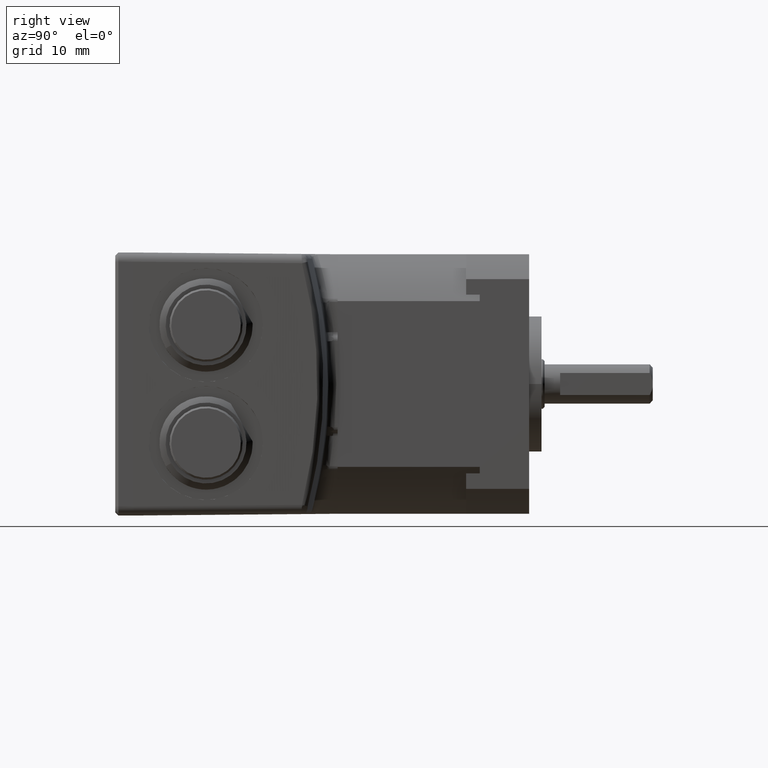
[diagram: clean part render]
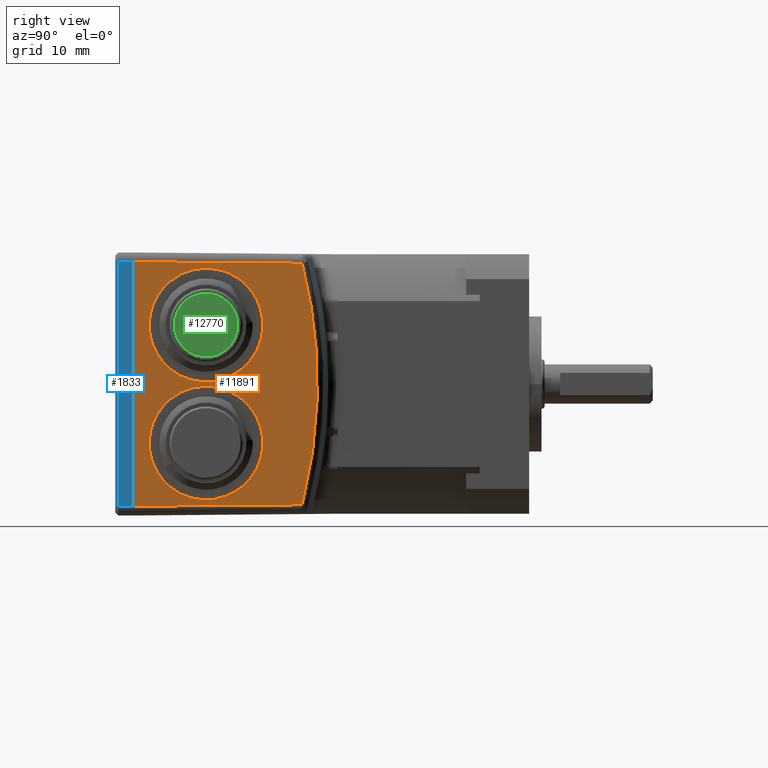
[diagram: same view with three faces highlighted in distinct colors, each labeled with its STEP entity id]
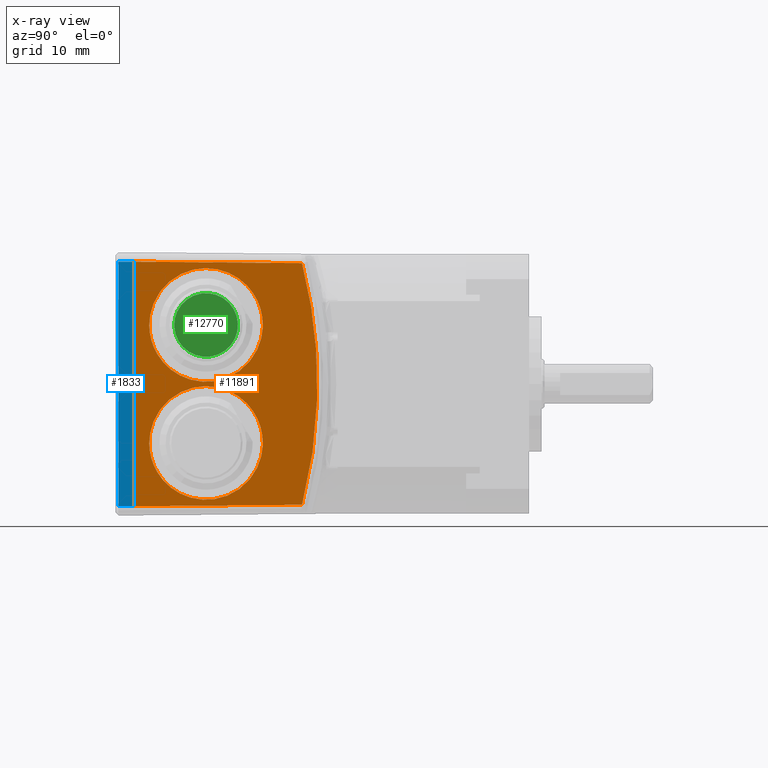
[diagram: x-ray of the same camera — body ghosted, the three highlighted faces saturated]
A machine part, right view with three faces highlighted in distinct colors.
The next image is the same camera in x-ray (body ghosted, the three faces saturated) — at least one of them is partly hidden behind the body in this view.
Their STEP definitions:

[orange] entity #11891 — the highlighted planar face has unit normal (1, 0.0087, -0).
#5 = CARTESIAN_POINT ( 'NONE',  ( 36.26616946761814830, -30.50000000000000711, 9.549999999999997158 ) ) ;
#164 = EDGE_LOOP ( 'NONE', ( #6401 ) ) ;
#346 = VERTEX_POINT ( 'NONE', #14197 ) ;
#418 = CARTESIAN_POINT ( 'NONE',  ( 36.28798663709504524, -33.00000000000000000, 20.99999999999999645 ) ) ;
#430 = CARTESIAN_POINT ( 'NONE',  ( 36.10559510026818231, -12.10000000000000142, 8.849999999999992539 ) ) ;
#555 = VECTOR ( 'NONE', #9724, 1000.000000000000000 ) ;
#560 = EDGE_CURVE ( 'NONE', #11190, #15937, #12379, .T. ) ;
#1679 = DIRECTION ( 'NONE',  ( 0.008726535498373953759, -0.9999619230641713097, -9.688400635503528767E-19 ) ) ;
#1766 = CARTESIAN_POINT ( 'NONE',  ( 36.26616946761814830, -30.50000000000000711, 8.849999999999988987 ) ) ;
#2437 = CARTESIAN_POINT ( 'NONE',  ( 36.26616946761814830, -30.50000000000000711, 9.549999999999997158 ) ) ;
#2866 = CARTESIAN_POINT ( 'NONE',  ( 36.10559510026818231, -12.09999999999999787, -27.95000000000000284 ) ) ;
#3868 = LINE ( 'NONE', #17142, #13364 ) ;
#4096 = AXIS2_PLACEMENT_3D ( 'NONE', #16085, #15032, #1679 ) ;
#4292 = EDGE_CURVE ( 'NONE', #11190, #5449, #3868, .T. ) ;
#4462 = FACE_BOUND ( 'NONE', #16611, .T. ) ;
#4592 = CARTESIAN_POINT ( 'NONE',  ( 36.26616946761814830, -30.50000000000000711, 9.549999999999997158 ) ) ;
#4711 = CARTESIAN_POINT ( 'NONE',  ( 36.03317836048226752, -3.801863541166340621, 8.989202323182405863 ) ) ;
#4870 = CARTESIAN_POINT ( 'NONE',  ( 36.03053752162614387, -3.499253381435361021, -6.615894705510670271 ) ) ;
#4985 = CARTESIAN_POINT ( 'NONE',  ( 36.26616946761814830, -30.50000000000000711, 27.94999999999999574 ) ) ;
#5449 = VERTEX_POINT ( 'NONE', #16677 ) ;
#5496 = B_SPLINE_CURVE_WITH_KNOTS ( 'NONE', 3,
 ( #16844, #15456, #8731, #4870, #8807, #10172, #10022, #12888, #11259, #14137, #4711, #16684, #7421, #6183 ),
 .UNSPECIFIED., .F., .F.,
 ( 4, 2, 2, 2, 2, 2, 4 ),
 ( 0.000000000000000000, 0.009810018899477650559, 0.01962003779895530112, 0.02452504724869412553, 0.02697755197356353773, 0.02943005669843294647, 0.03924007559791060917 ),
 .UNSPECIFIED. ) ;
#5893 = LINE ( 'NONE', #11223, #555 ) ;
#6183 = CARTESIAN_POINT ( 'NONE',  ( 36.05038119505783101, -5.773113133577770562, 19.55043831046156555 ) ) ;
#6401 = ORIENTED_EDGE ( 'NONE', *, *, #16016, .T. ) ;
#6902 = CARTESIAN_POINT ( 'NONE',  ( 36.26616946761814830, -30.50000000000000711, -27.95000000000000639 ) ) ;
#7094 = FACE_BOUND ( 'NONE', #164, .T. ) ;
#7421 = CARTESIAN_POINT ( 'NONE',  ( 36.04313725348462327, -4.943039647089695343, 16.33889738293623850 ) ) ;
#7542 = CARTESIAN_POINT ( 'NONE',  ( 36.28798663709504524, -33.00000000000000000, 19.78804375249877978 ) ) ;
#7597 = EDGE_CURVE ( 'NONE', #346, #15937, #5893, .T. ) ;
#7712 = VERTEX_POINT ( 'NONE', #15752 ) ;
#8164 =( BOUNDED_CURVE ( )  B_SPLINE_CURVE ( 3, ( #5, #4985, #10277, #14520, #15651, #17125, #2437 ),
 .UNSPECIFIED., .T., .T. ) 
 B_SPLINE_CURVE_WITH_KNOTS ( ( 4, 3, 4 ),
 ( 9.688769554160371613E-19, 3.141592653589793116, 6.283185307179586232 ),
 .UNSPECIFIED. ) 
 CURVE ( )  GEOMETRIC_REPRESENTATION_ITEM ( )  RATIONAL_B_SPLINE_CURVE ( ( 1.000000000000000000, 0.3333333333333333703, 0.3333333333333333703, 1.000000000000000000, 0.3333333333333333703, 0.3333333333333333703, 1.000000000000000000 ) ) 
 REPRESENTATION_ITEM ( '' )  );
#8287 = CARTESIAN_POINT ( 'NONE',  ( 36.26616946761814830, -30.50000000000000711, -9.550000000000004263 ) ) ;
#8480 = FACE_OUTER_BOUND ( 'NONE', #9794, .T. ) ;
#8602 = VERTEX_POINT ( 'NONE', #4592 ) ;
#8731 = CARTESIAN_POINT ( 'NONE',  ( 36.03774897812961342, -4.325604447630988503, -13.10939748596302046 ) ) ;
#8807 = CARTESIAN_POINT ( 'NONE',  ( 36.02871480626861000, -3.290390889043373068, -3.351887370253044285 ) ) ;
#9113 = ORIENTED_EDGE ( 'NONE', *, *, #10330, .T. ) ;
#9724 = DIRECTION ( 'NONE',  ( 0.008726203243944238158, -0.9999238504775704861, 0.008726203243944232954 ) ) ;
#9794 = EDGE_LOOP ( 'NONE', ( #10826, #13709, #10334, #12535 ) ) ;
#10022 = CARTESIAN_POINT ( 'NONE',  ( 36.02911365280559863, -3.336094175326125288, 3.215267693572015251 ) ) ;
#10172 = CARTESIAN_POINT ( 'NONE',  ( 36.02867605025628706, -3.285949889907775479, 1.570208829527302674 ) ) ;
#10277 = CARTESIAN_POINT ( 'NONE',  ( 36.10559510026818231, -12.10000000000000142, 27.95000000000000284 ) ) ;
#10330 = EDGE_CURVE ( 'NONE', #8602, #8602, #8164, .T. ) ;
#10334 = ORIENTED_EDGE ( 'NONE', *, *, #7597, .T. ) ;
#10826 = ORIENTED_EDGE ( 'NONE', *, *, #4292, .T. ) ;
#10833 = PLANE ( 'NONE',  #4096 ) ;
#11161 = VECTOR ( 'NONE', #17133, 1000.000000000000000 ) ;
#11190 = VERTEX_POINT ( 'NONE', #11241 ) ;
#11223 = CARTESIAN_POINT ( 'NONE',  ( 36.00011421558544100, -0.01308780975893343405, 19.50017133098917554 ) ) ;
#11241 = CARTESIAN_POINT ( 'NONE',  ( 36.28798663709504524, -33.00000000000000000, -19.78804375249876912 ) ) ;
#11259 = CARTESIAN_POINT ( 'NONE',  ( 36.03102607064481333, -3.555235554005237386, 6.516522690274697993 ) ) ;
#11891 = ADVANCED_FACE ( 'NONE', ( #7094, #4462, #8480 ), #10833, .T. ) ;
#12215 = CARTESIAN_POINT ( 'NONE',  ( 36.26616946761814830, -30.50000000000000711, -9.550000000000004263 ) ) ;
#12379 = LINE ( 'NONE', #418, #11161 ) ;
#12535 = ORIENTED_EDGE ( 'NONE', *, *, #560, .F. ) ;
#12888 = CARTESIAN_POINT ( 'NONE',  ( 36.03046080510046778, -3.490462538313461760, 5.689541032514252805 ) ) ;
#13364 = VECTOR ( 'NONE', #17230, 1000.000000000000000 ) ;
#13709 = ORIENTED_EDGE ( 'NONE', *, *, #16160, .T. ) ;
#13813 = CARTESIAN_POINT ( 'NONE',  ( 36.10559510026818231, -12.09999999999999964, -9.550000000000002487 ) ) ;
#14137 = CARTESIAN_POINT ( 'NONE',  ( 36.03238512951543981, -3.710968275438108144, 8.166455075859868629 ) ) ;
#14197 = CARTESIAN_POINT ( 'NONE',  ( 36.05038119505783101, -5.773113133577770562, 19.55043831046156555 ) ) ;
#14286 =( BOUNDED_CURVE ( )  B_SPLINE_CURVE ( 3, ( #12215, #1766, #430, #13813, #2866, #6902, #8287 ),
 .UNSPECIFIED., .T., .T. ) 
 B_SPLINE_CURVE_WITH_KNOTS ( ( 4, 3, 4 ),
 ( 9.688769554160371613E-19, 3.141592653589793116, 6.283185307179586232 ),
 .UNSPECIFIED. ) 
 CURVE ( )  GEOMETRIC_REPRESENTATION_ITEM ( )  RATIONAL_B_SPLINE_CURVE ( ( 1.000000000000000000, 0.3333333333333333703, 0.3333333333333333703, 1.000000000000000000, 0.3333333333333333703, 0.3333333333333333703, 1.000000000000000000 ) ) 
 REPRESENTATION_ITEM ( '' )  );
#14520 = CARTESIAN_POINT ( 'NONE',  ( 36.10559510026818231, -12.09999999999999787, 9.549999999999998934 ) ) ;
#15032 = DIRECTION ( 'NONE',  ( 0.9999619230641713097, 0.008726535498373953759, -1.110180750734292354E-16 ) ) ;
#15456 = CARTESIAN_POINT ( 'NONE',  ( 36.04313725360854903, -4.943039661287755848, -16.33889743786841819 ) ) ;
#15651 = CARTESIAN_POINT ( 'NONE',  ( 36.10559510026818231, -12.09999999999999609, -8.849999999999999645 ) ) ;
#15752 = CARTESIAN_POINT ( 'NONE',  ( 36.26616946761814830, -30.50000000000000711, -9.550000000000004263 ) ) ;
#15937 = VERTEX_POINT ( 'NONE', #7542 ) ;
#16016 = EDGE_CURVE ( 'NONE', #7712, #7712, #14286, .T. ) ;
#16085 = CARTESIAN_POINT ( 'NONE',  ( 36.00000000000000711, 0.000000000000000000, 20.99999999999999645 ) ) ;
#16160 = EDGE_CURVE ( 'NONE', #5449, #346, #5496, .T. ) ;
#16611 = EDGE_LOOP ( 'NONE', ( #9113 ) ) ;
#16677 = CARTESIAN_POINT ( 'NONE',  ( 36.05038119505783101, -5.773113133577774114, -19.55043831046157976 ) ) ;
#16684 = CARTESIAN_POINT ( 'NONE',  ( 36.03770984652869203, -4.321120410306097170, 13.09190582245018497 ) ) ;
#16844 = CARTESIAN_POINT ( 'NONE',  ( 36.05038119505783101, -5.773113133577774114, -19.55043831046157976 ) ) ;
#17125 = CARTESIAN_POINT ( 'NONE',  ( 36.26616946761814830, -30.50000000000000711, -8.849999999999999645 ) ) ;
#17133 = DIRECTION ( 'NONE',  ( 1.110223024625156540E-16, -0.000000000000000000, 1.000000000000000000 ) ) ;
#17142 = CARTESIAN_POINT ( 'NONE',  ( 35.99691605741714540, 0.3533848176459192802, -19.49697317282089770 ) ) ;
#17230 = DIRECTION ( 'NONE',  ( -0.008726203243944234689, 0.9999238504775704861, 0.008726203243944236423 ) ) ;

[blue] entity #1833 — the highlighted planar face has unit normal (-1, 0, 0).
#26 = CARTESIAN_POINT ( 'NONE',  ( 36.28798663709504524, -35.49999999999993605, -19.78804375249876202 ) ) ;
#418 = CARTESIAN_POINT ( 'NONE',  ( 36.28798663709504524, -33.00000000000000000, 20.99999999999999645 ) ) ;
#560 = EDGE_CURVE ( 'NONE', #11190, #15937, #12379, .T. ) ;
#1429 = DIRECTION ( 'NONE',  ( 0.000000000000000000, 1.000000000000000000, -2.442490654175344783E-15 ) ) ;
#1833 = ADVANCED_FACE ( 'NONE', ( #7960 ), #2360, .F. ) ;
#2360 = PLANE ( 'NONE',  #13289 ) ;
#3525 = CARTESIAN_POINT ( 'NONE',  ( 36.28798663709504524, -36.00000000000007105, 19.78804375249878689 ) ) ;
#4229 = EDGE_CURVE ( 'NONE', #8957, #4274, #7964, .T. ) ;
#4274 = VERTEX_POINT ( 'NONE', #6826 ) ;
#4919 = ORIENTED_EDGE ( 'NONE', *, *, #560, .T. ) ;
#5163 = DIRECTION ( 'NONE',  ( -1.000000000000000000, 0.000000000000000000, 0.000000000000000000 ) ) ;
#5244 = CARTESIAN_POINT ( 'NONE',  ( 36.28798663709504524, -35.99999999999993605, -19.78804375249876202 ) ) ;
#6826 = CARTESIAN_POINT ( 'NONE',  ( 36.28798663709504524, -35.49999999999993605, -19.78804375249876202 ) ) ;
#7542 = CARTESIAN_POINT ( 'NONE',  ( 36.28798663709504524, -33.00000000000000000, 19.78804375249877978 ) ) ;
#7960 = FACE_OUTER_BOUND ( 'NONE', #12509, .T. ) ;
#7964 = LINE ( 'NONE', #26, #9744 ) ;
#8501 = ORIENTED_EDGE ( 'NONE', *, *, #8857, .F. ) ;
#8857 = EDGE_CURVE ( 'NONE', #8957, #15937, #12854, .T. ) ;
#8957 = VERTEX_POINT ( 'NONE', #10687 ) ;
#9744 = VECTOR ( 'NONE', #13192, 1000.000000000000000 ) ;
#10687 = CARTESIAN_POINT ( 'NONE',  ( 36.28798663709504524, -35.49999999999877076, 19.78804375249878689 ) ) ;
#11161 = VECTOR ( 'NONE', #17133, 1000.000000000000000 ) ;
#11190 = VERTEX_POINT ( 'NONE', #11241 ) ;
#11231 = ORIENTED_EDGE ( 'NONE', *, *, #13749, .T. ) ;
#11241 = CARTESIAN_POINT ( 'NONE',  ( 36.28798663709504524, -33.00000000000000000, -19.78804375249876912 ) ) ;
#11726 = DIRECTION ( 'NONE',  ( 0.000000000000000000, 1.000000000000000000, -2.442490654175344783E-15 ) ) ;
#12064 = ORIENTED_EDGE ( 'NONE', *, *, #4229, .T. ) ;
#12379 = LINE ( 'NONE', #418, #11161 ) ;
#12509 = EDGE_LOOP ( 'NONE', ( #8501, #12064, #11231, #4919 ) ) ;
#12854 = LINE ( 'NONE', #3525, #16360 ) ;
#13005 = CARTESIAN_POINT ( 'NONE',  ( 36.28798663709504524, -35.99999999999993605, -19.78804375249876202 ) ) ;
#13192 = DIRECTION ( 'NONE',  ( 0.000000000000000000, 2.220446049250313475E-15, -1.000000000000000000 ) ) ;
#13289 = AXIS2_PLACEMENT_3D ( 'NONE', #13005, #5163, #11726 ) ;
#13749 = EDGE_CURVE ( 'NONE', #4274, #11190, #17227, .T. ) ;
#15497 = DIRECTION ( 'NONE',  ( 0.000000000000000000, 1.000000000000000000, -2.442490654175344783E-15 ) ) ;
#15937 = VERTEX_POINT ( 'NONE', #7542 ) ;
#16360 = VECTOR ( 'NONE', #15497, 1000.000000000000000 ) ;
#16525 = VECTOR ( 'NONE', #1429, 1000.000000000000000 ) ;
#17133 = DIRECTION ( 'NONE',  ( 1.110223024625156540E-16, -0.000000000000000000, 1.000000000000000000 ) ) ;
#17227 = LINE ( 'NONE', #5244, #16525 ) ;

[green] entity #12770 — the highlighted planar face has unit normal (-1, -0, 0).
#1236 = DIRECTION ( 'NONE',  ( -1.000000000000000000, -9.938326753248522115E-17, 1.605088438515119575E-16 ) ) ;
#2339 = DIRECTION ( 'NONE',  ( 5.814012468480561883E-18, -0.8660254037844363761, -0.5000000000000039968 ) ) ;
#3405 = FACE_OUTER_BOUND ( 'NONE', #5782, .T. ) ;
#3424 = DIRECTION ( 'NONE',  ( 1.000000000000000000, 9.938326753248514719E-17, -1.605088438515120068E-16 ) ) ;
#5199 = CIRCLE ( 'NONE', #17205, 5.149999999999994138 ) ;
#5782 = EDGE_LOOP ( 'NONE', ( #9742 ) ) ;
#7870 = CARTESIAN_POINT ( 'NONE',  ( 46.78798663709489603, -23.87499999999997868, 14.01003082948981415 ) ) ;
#9742 = ORIENTED_EDGE ( 'NONE', *, *, #15002, .T. ) ;
#10196 = CARTESIAN_POINT ( 'NONE',  ( 46.78798663709489603, -21.29999999999999361, 9.549999999999977618 ) ) ;
#11300 = CARTESIAN_POINT ( 'NONE',  ( 46.78798663709489603, -16.83996917051015174, 12.12499999999999467 ) ) ;
#12263 = AXIS2_PLACEMENT_3D ( 'NONE', #7870, #1236, #2339 ) ;
#12770 = ADVANCED_FACE ( 'NONE', ( #3405 ), #16772, .F. ) ;
#14017 = DIRECTION ( 'NONE',  ( 0.000000000000000000, 0.8660254037844362651, 0.5000000000000041078 ) ) ;
#15002 = EDGE_CURVE ( 'NONE', #15250, #15250, #5199, .T. ) ;
#15250 = VERTEX_POINT ( 'NONE', #11300 ) ;
#16772 = PLANE ( 'NONE',  #12263 ) ;
#17205 = AXIS2_PLACEMENT_3D ( 'NONE', #10196, #3424, #14017 ) ;